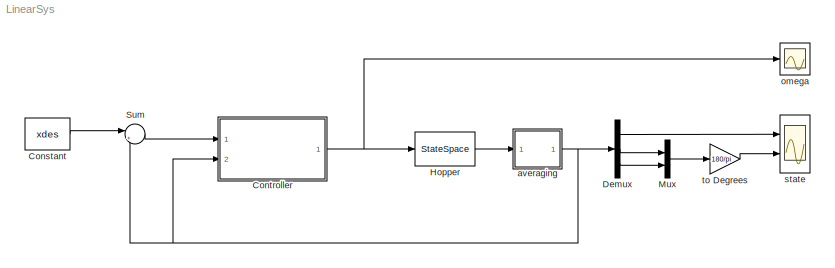
MODEL LinearSys
KIND model
BLOCK [Constant] Constant
  SID = 16
  Value = xdes
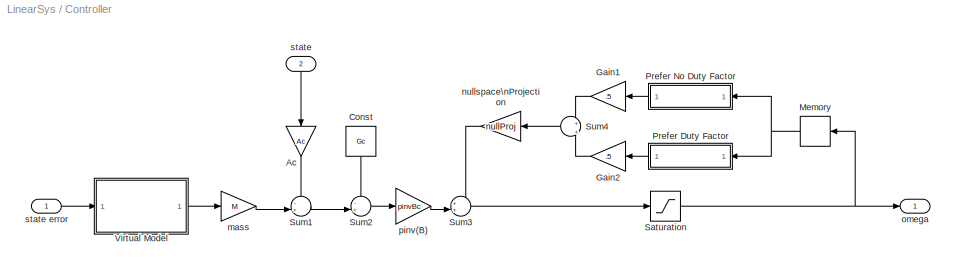
BLOCK [SubSystem] Controller
  FunctionWithSeparateData = off
  MaskHideContents = off
  MinAlgLoopOccurrences = off
  Opaque = off
  Ports = [2, 1]
  PropExecContextOutsideSubsystem = off
  RTWSystemCode = Auto
  RequestExecContextInheritance = off
  SID = 81
BLOCK [Gain] Controller/Ac
  Gain = Ac
  Multiplication = Matrix(K*u)
  OutDataTypeStr = Inherit: Inherit via internal rule
  ParamDataTypeStr = Inherit: Inherit via internal rule
  SID = 31
  SaturateOnIntegerOverflow = off
BLOCK [Constant] Controller/Const
  SID = 34
  Value = Gc
BLOCK [Gain] Controller/Gain1
  Gain = .5
  OutDataTypeStr = Inherit: Inherit via internal rule
  ParamDataTypeStr = Inherit: Inherit via internal rule
  SID = 41
  SaturateOnIntegerOverflow = off
BLOCK [Gain] Controller/Gain2
  Gain = .5
  OutDataTypeStr = Inherit: Inherit via internal rule
  ParamDataTypeStr = Inherit: Inherit via internal rule
  SID = 42
  SaturateOnIntegerOverflow = off
BLOCK [Memory] Controller/Memory
  SID = 43
  X0 = w*ones(8,1)
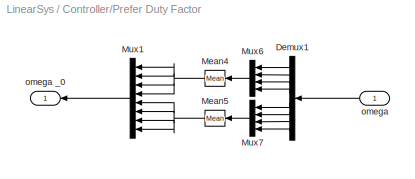
BLOCK [SubSystem] Controller/Prefer Duty Factor
  FunctionWithSeparateData = off
  MaskHideContents = off
  MinAlgLoopOccurrences = off
  Opaque = off
  Ports = [1, 1]
  PropExecContextOutsideSubsystem = off
  RTWSystemCode = Auto
  RequestExecContextInheritance = off
  SID = 44
BLOCK [Demux] Controller/Prefer Duty Factor/Demux1
  DisplayOption = bar
  Outputs = 8
  Ports = [1, 8]
  SID = 46
BLOCK [Reference] Controller/Prefer Duty Factor/Mean4  REF=dspstat3/Mean
  InputProcessing = Columns as channels (frame based)
  LockScale = off
  Ports = [1, 1]
  SID = 47
  SourceBlock = dspstat3/Mean
  SourceType = Mean
  UserData = DataTag0
  UserDataPersistent = on
  accumDataTypeStr = Inherit: Same as input
  accumFracLength = 30
  accumLastDataTypeStr = Inherit: Same as input
  accumMode = Same as input
  accumWordLength = 32
  additionalParams = off
  allowOverrides = on
  dimension = 1
  directionMode = Each column
  outputDataTypeStr = Inherit: Same as accumulator
  outputFracLength = 30
  outputLastDataTypeStr = Inherit: Same as accumulator
  outputMax = []
  outputMin = []
  outputMode = Same as accumulator
  outputWordLength = 32
  overflowMode = off
  reset_popup = None
  roiEnable = off
  roiFlag = off
  roiOutput = Individual statistics for each ROI
  roiPortion = Entire ROI
  roiType = Rectangles
  roundingMode = Floor
  run = off
  treatSBRowAsCol = on
BLOCK [Reference] Controller/Prefer Duty Factor/Mean5  REF=dspstat3/Mean
  InputProcessing = Columns as channels (frame based)
  LockScale = off
  Ports = [1, 1]
  SID = 48
  SourceBlock = dspstat3/Mean
  SourceType = Mean
  UserData = DataTag1
  UserDataPersistent = on
  accumDataTypeStr = Inherit: Same as input
  accumFracLength = 30
  accumLastDataTypeStr = Inherit: Same as input
  accumMode = Same as input
  accumWordLength = 32
  additionalParams = off
  allowOverrides = on
  dimension = 1
  directionMode = Each column
  outputDataTypeStr = Inherit: Same as accumulator
  outputFracLength = 30
  outputLastDataTypeStr = Inherit: Same as accumulator
  outputMax = []
  outputMin = []
  outputMode = Same as accumulator
  outputWordLength = 32
  overflowMode = off
  reset_popup = None
  roiEnable = off
  roiFlag = off
  roiOutput = Individual statistics for each ROI
  roiPortion = Entire ROI
  roiType = Rectangles
  roundingMode = Floor
  run = off
  treatSBRowAsCol = on
BLOCK [Mux] Controller/Prefer Duty Factor/Mux1
  DisplayOption = bar
  Inputs = 8
  Ports = [8, 1]
  SID = 49
BLOCK [Mux] Controller/Prefer Duty Factor/Mux6
  DisplayOption = bar
  Ports = [4, 1]
  SID = 50
BLOCK [Mux] Controller/Prefer Duty Factor/Mux7
  DisplayOption = bar
  Ports = [4, 1]
  SID = 51
BLOCK [Inport] Controller/Prefer Duty Factor/omega
  IconDisplay = Port number
  SID = 45
BLOCK [Outport] Controller/Prefer Duty Factor/omega _0
  IconDisplay = Port number
  SID = 52
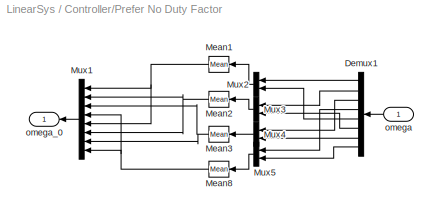
BLOCK [SubSystem] Controller/Prefer No Duty Factor
  FunctionWithSeparateData = off
  MaskHideContents = off
  MinAlgLoopOccurrences = off
  Opaque = off
  Ports = [1, 1]
  PropExecContextOutsideSubsystem = off
  RTWSystemCode = Auto
  RequestExecContextInheritance = off
  SID = 53
BLOCK [Demux] Controller/Prefer No Duty Factor/Demux1
  DisplayOption = bar
  Outputs = 8
  Ports = [1, 8]
  SID = 55
BLOCK [Reference] Controller/Prefer No Duty Factor/Mean1  REF=dspstat3/Mean
  InputProcessing = Columns as channels (frame based)
  LockScale = off
  Ports = [1, 1]
  SID = 56
  SourceBlock = dspstat3/Mean
  SourceType = Mean
  UserData = DataTag2
  UserDataPersistent = on
  accumDataTypeStr = Inherit: Same as input
  accumFracLength = 30
  accumLastDataTypeStr = Inherit: Same as input
  accumMode = Same as input
  accumWordLength = 32
  additionalParams = off
  allowOverrides = on
  dimension = 1
  directionMode = Each column
  outputDataTypeStr = Inherit: Same as accumulator
  outputFracLength = 30
  outputLastDataTypeStr = Inherit: Same as accumulator
  outputMax = []
  outputMin = []
  outputMode = Same as accumulator
  outputWordLength = 32
  overflowMode = off
  reset_popup = None
  roiEnable = off
  roiFlag = off
  roiOutput = Individual statistics for each ROI
  roiPortion = Entire ROI
  roiType = Rectangles
  roundingMode = Floor
  run = off
  treatSBRowAsCol = on
BLOCK [Reference] Controller/Prefer No Duty Factor/Mean2  REF=dspstat3/Mean
  InputProcessing = Columns as channels (frame based)
  LockScale = off
  Ports = [1, 1]
  SID = 57
  SourceBlock = dspstat3/Mean
  SourceType = Mean
  UserData = DataTag3
  UserDataPersistent = on
  accumDataTypeStr = Inherit: Same as input
  accumFracLength = 30
  accumLastDataTypeStr = Inherit: Same as input
  accumMode = Same as input
  accumWordLength = 32
  additionalParams = off
  allowOverrides = on
  dimension = 1
  directionMode = Each column
  outputDataTypeStr = Inherit: Same as accumulator
  outputFracLength = 30
  outputLastDataTypeStr = Inherit: Same as accumulator
  outputMax = []
  outputMin = []
  outputMode = Same as accumulator
  outputWordLength = 32
  overflowMode = off
  reset_popup = None
  roiEnable = off
  roiFlag = off
  roiOutput = Individual statistics for each ROI
  roiPortion = Entire ROI
  roiType = Rectangles
  roundingMode = Floor
  run = off
  treatSBRowAsCol = on
BLOCK [Reference] Controller/Prefer No Duty Factor/Mean3  REF=dspstat3/Mean
  InputProcessing = Columns as channels (frame based)
  LockScale = off
  Ports = [1, 1]
  SID = 58
  SourceBlock = dspstat3/Mean
  SourceType = Mean
  UserData = DataTag4
  UserDataPersistent = on
  accumDataTypeStr = Inherit: Same as input
  accumFracLength = 30
  accumLastDataTypeStr = Inherit: Same as input
  accumMode = Same as input
  accumWordLength = 32
  additionalParams = off
  allowOverrides = on
  dimension = 1
  directionMode = Each column
  outputDataTypeStr = Inherit: Same as accumulator
  outputFracLength = 30
  outputLastDataTypeStr = Inherit: Same as accumulator
  outputMax = []
  outputMin = []
  outputMode = Same as accumulator
  outputWordLength = 32
  overflowMode = off
  reset_popup = None
  roiEnable = off
  roiFlag = off
  roiOutput = Individual statistics for each ROI
  roiPortion = Entire ROI
  roiType = Rectangles
  roundingMode = Floor
  run = off
  treatSBRowAsCol = on
BLOCK [Reference] Controller/Prefer No Duty Factor/Mean8  REF=dspstat3/Mean
  InputProcessing = Columns as channels (frame based)
  LockScale = off
  Ports = [1, 1]
  SID = 59
  SourceBlock = dspstat3/Mean
  SourceType = Mean
  UserData = DataTag5
  UserDataPersistent = on
  accumDataTypeStr = Inherit: Same as input
  accumFracLength = 30
  accumLastDataTypeStr = Inherit: Same as input
  accumMode = Same as input
  accumWordLength = 32
  additionalParams = off
  allowOverrides = on
  dimension = 1
  directionMode = Each column
  outputDataTypeStr = Inherit: Same as accumulator
  outputFracLength = 30
  outputLastDataTypeStr = Inherit: Same as accumulator
  outputMax = []
  outputMin = []
  outputMode = Same as accumulator
  outputWordLength = 32
  overflowMode = off
  reset_popup = None
  roiEnable = off
  roiFlag = off
  roiOutput = Individual statistics for each ROI
  roiPortion = Entire ROI
  roiType = Rectangles
  roundingMode = Floor
  run = off
  treatSBRowAsCol = on
BLOCK [Mux] Controller/Prefer No Duty Factor/Mux1
  DisplayOption = bar
  Inputs = 8
  Ports = [8, 1]
  SID = 60
BLOCK [Mux] Controller/Prefer No Duty Factor/Mux2
  DisplayOption = bar
  Inputs = 2
  Ports = [2, 1]
  SID = 61
BLOCK [Mux] Controller/Prefer No Duty Factor/Mux3
  DisplayOption = bar
  Inputs = 2
  Ports = [2, 1]
  SID = 62
BLOCK [Mux] Controller/Prefer No Duty Factor/Mux4
  DisplayOption = bar
  Inputs = 2
  Ports = [2, 1]
  SID = 63
BLOCK [Mux] Controller/Prefer No Duty Factor/Mux5
  DisplayOption = bar
  Inputs = 2
  Ports = [2, 1]
  SID = 64
BLOCK [Inport] Controller/Prefer No Duty Factor/omega
  IconDisplay = Port number
  SID = 54
BLOCK [Outport] Controller/Prefer No Duty Factor/omega_0
  IconDisplay = Port number
  SID = 65
BLOCK [Saturate] Controller/Saturation
  InputPortMap = u0
  LowerLimit = 10
  Ports = [1, 1]
  SID = 80
  UpperLimit = 100
BLOCK [Sum] Controller/Sum1
  IconShape = round
  InputSameDT = off
  Inputs = -+|
  OutDataTypeStr = Inherit: Inherit via internal rule
  Ports = [2, 1]
  SID = 32
  SaturateOnIntegerOverflow = off
BLOCK [Sum] Controller/Sum2
  IconShape = round
  InputSameDT = off
  Inputs = -+|
  OutDataTypeStr = Inherit: Inherit via internal rule
  Ports = [2, 1]
  SID = 33
  SaturateOnIntegerOverflow = off
BLOCK [Sum] Controller/Sum3
  IconShape = round
  InputSameDT = off
  Inputs = ++|
  OutDataTypeStr = Inherit: Inherit via internal rule
  Ports = [2, 1]
  SID = 68
  SaturateOnIntegerOverflow = off
BLOCK [Sum] Controller/Sum4
  IconShape = round
  InputSameDT = off
  Inputs = +|+
  OutDataTypeStr = Inherit: Inherit via internal rule
  Ports = [2, 1]
  SID = 66
  SaturateOnIntegerOverflow = off
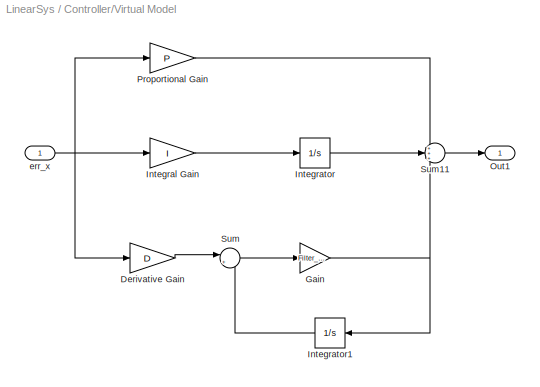
BLOCK [SubSystem] Controller/Virtual Model
  FunctionWithSeparateData = off
  MaskHideContents = off
  MinAlgLoopOccurrences = off
  Opaque = off
  Ports = [1, 1]
  PropExecContextOutsideSubsystem = off
  RTWSystemCode = Auto
  RequestExecContextInheritance = off
  SID = 17
BLOCK [Gain] Controller/Virtual Model/Derivative Gain
  Gain = D
  Multiplication = Matrix(K*u)
  OutDataTypeStr = Inherit: Inherit via internal rule
  ParamDataTypeStr = Inherit: Inherit via internal rule
  SID = 20
  SaturateOnIntegerOverflow = off
BLOCK [Gain] Controller/Virtual Model/Gain
  Gain = Filter_Coef
  OutDataTypeStr = Inherit: Inherit via internal rule
  ParamDataTypeStr = Inherit: Inherit via internal rule
  SID = 21
  SaturateOnIntegerOverflow = off
BLOCK [Gain] Controller/Virtual Model/Integral Gain
  DisableCoverage = on
  Gain = I
  Multiplication = Matrix(K*u)
  OutDataTypeStr = Inherit: Inherit via internal rule
  ParamDataTypeStr = Inherit: Inherit via internal rule
  SID = 22
  SaturateOnIntegerOverflow = off
BLOCK [Integrator] Controller/Virtual Model/Integrator
  Ports = [1, 1]
  SID = 23
BLOCK [Integrator] Controller/Virtual Model/Integrator1
  Ports = [1, 1]
  SID = 24
BLOCK [Outport] Controller/Virtual Model/Out1
  IconDisplay = Port number
  SID = 29
BLOCK [Gain] Controller/Virtual Model/Proportional Gain
  Gain = P
  Multiplication = Matrix(K*u)
  OutDataTypeStr = Inherit: Inherit via internal rule
  ParamDataTypeStr = Inherit: Inherit via internal rule
  SID = 25
  SaturateOnIntegerOverflow = off
BLOCK [Sum] Controller/Virtual Model/Sum
  IconShape = round
  InputSameDT = off
  Inputs = |+-
  OutDataTypeStr = Inherit: Inherit via internal rule
  Ports = [2, 1]
  SID = 26
  SaturateOnIntegerOverflow = off
BLOCK [Sum] Controller/Virtual Model/Sum11
  IconShape = round
  InputSameDT = off
  Inputs = +++
  OutDataTypeStr = Inherit: Inherit via internal rule
  Ports = [3, 1]
  SID = 28
  SaturateOnIntegerOverflow = off
BLOCK [Inport] Controller/Virtual Model/err_x
  IconDisplay = Port number
  SID = 19
BLOCK [Gain] Controller/mass
  Gain = M
  Multiplication = Matrix(K*u)
  OutDataTypeStr = Inherit: Inherit via internal rule
  ParamDataTypeStr = Inherit: Inherit via internal rule
  SID = 30
  SaturateOnIntegerOverflow = off
BLOCK [Gain] Controller/nullspace\nProjection
  Gain = nullProj
  Multiplication = Matrix(K*u)
  OutDataTypeStr = Inherit: Inherit via internal rule
  ParamDataTypeStr = Inherit: Inherit via internal rule
  SID = 69
  SaturateOnIntegerOverflow = off
BLOCK [Outport] Controller/omega
  IconDisplay = Port number
  SID = 84
BLOCK [Gain] Controller/pinv(B)
  Gain = pinvBc
  Multiplication = Matrix(K*u)
  OutDataTypeStr = Inherit: Inherit via internal rule
  ParamDataTypeStr = Inherit: Inherit via internal rule
  SID = 35
  SaturateOnIntegerOverflow = off
BLOCK [Inport] Controller/state
  IconDisplay = Port number
  Port = 2
  SID = 83
BLOCK [Inport] Controller/state error
  IconDisplay = Port number
  SID = 82
BLOCK [Demux] Demux
  DisplayOption = bar
  Outputs = 3
  Ports = [1, 3]
  SID = 85
BLOCK [StateSpace] Hopper
  A = As
  B = Bs
  C = Cs
  D = Ds
  SID = 1
  X0 = x0
BLOCK [Mux] Mux
  DisplayOption = bar
  Inputs = 2
  Ports = [2, 1]
  SID = 86
BLOCK [Sum] Sum
  IconShape = round
  InputSameDT = off
  Inputs = |+-
  OutDataTypeStr = Inherit: Inherit via internal rule
  Ports = [2, 1]
  SID = 15
  SaturateOnIntegerOverflow = off
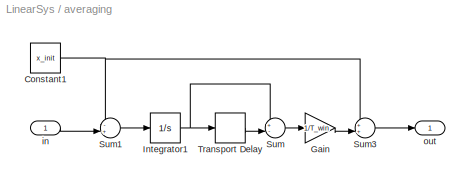
BLOCK [SubSystem] averaging
  FunctionWithSeparateData = off
  MaskHideContents = off
  MinAlgLoopOccurrences = off
  Opaque = off
  Ports = [1, 1]
  PropExecContextOutsideSubsystem = off
  RTWSystemCode = Auto
  RequestExecContextInheritance = off
  SID = 70
BLOCK [Constant] averaging/Constant1
  SID = 72
  Value = x_init
BLOCK [Gain] averaging/Gain
  Gain = 1/T_win
  OutDataTypeStr = Inherit: Inherit via internal rule
  ParamDataTypeStr = Inherit: Inherit via internal rule
  SID = 73
  SaturateOnIntegerOverflow = off
BLOCK [Integrator] averaging/Integrator1
  Ports = [1, 1]
  SID = 74
BLOCK [Sum] averaging/Sum
  IconShape = round
  InputSameDT = off
  Inputs = +-|
  OutDataTypeStr = Inherit: Inherit via internal rule
  Ports = [2, 1]
  SID = 75
  SaturateOnIntegerOverflow = off
BLOCK [Sum] averaging/Sum1
  IconShape = round
  InputSameDT = off
  Inputs = -+|
  OutDataTypeStr = Inherit: Inherit via internal rule
  Ports = [2, 1]
  SID = 76
  SaturateOnIntegerOverflow = off
BLOCK [Sum] averaging/Sum3
  IconShape = round
  InputSameDT = off
  Inputs = ++|
  OutDataTypeStr = Inherit: Inherit via internal rule
  Ports = [2, 1]
  SID = 77
  SaturateOnIntegerOverflow = off
BLOCK [TransportDelay] averaging/Transport Delay
  DelayTime = T_win
  Ports = [1, 1]
  SID = 78
BLOCK [Inport] averaging/in
  IconDisplay = Port number
  SID = 71
BLOCK [Outport] averaging/out
  IconDisplay = Port number
  SID = 79
BLOCK [Scope] omega
  DataFormat = StructureWithTime
  Floating = off
  LimitDataPoints = off
  NumInputPorts = 1
  Ports = [1]
  SID = 40
  SampleTime = 0
  SaveName = ScopeData1
  ShowLegends = off
  TimeRange = 20
  YMax = 59.7
  YMin = 59.3
  ZoomMode = yonly
BLOCK [Scope] state
  DataFormat = StructureWithTime
  Floating = off
  LimitDataPoints = off
  NumInputPorts = 2
  Ports = [2]
  SID = 3
  SampleTime = 0
  ShowLegends = off
  TimeRange = 20
  YMax = 0.0225~25
  YMin = 0.0175~-15
  ZoomMode = xonly
BLOCK [Gain] to Degrees
  Gain = 180/pi
  OutDataTypeStr = Inherit: Inherit via internal rule
  ParamDataTypeStr = Inherit: Inherit via internal rule
  SID = 88
  SaturateOnIntegerOverflow = off
LINE Constant:1 -> Sum:1
LINE Controller/Ac:1 -> Controller/Sum1:1
LINE Controller/Const:1 -> Controller/Sum2:1
LINE Controller/Gain1:1 -> Controller/Sum4:1
LINE Controller/Gain2:1 -> Controller/Sum4:2
NET Controller/Memory:1 -> Controller/Prefer Duty Factor:1, Controller/Prefer No Duty Factor:1
LINE Controller/Prefer Duty Factor/Demux1:1 -> Controller/Prefer Duty Factor/Mux6:1
LINE Controller/Prefer Duty Factor/Demux1:2 -> Controller/Prefer Duty Factor/Mux6:2
LINE Controller/Prefer Duty Factor/Demux1:3 -> Controller/Prefer Duty Factor/Mux6:3
LINE Controller/Prefer Duty Factor/Demux1:4 -> Controller/Prefer Duty Factor/Mux6:4
LINE Controller/Prefer Duty Factor/Demux1:5 -> Controller/Prefer Duty Factor/Mux7:1
LINE Controller/Prefer Duty Factor/Demux1:6 -> Controller/Prefer Duty Factor/Mux7:2
LINE Controller/Prefer Duty Factor/Demux1:7 -> Controller/Prefer Duty Factor/Mux7:3
LINE Controller/Prefer Duty Factor/Demux1:8 -> Controller/Prefer Duty Factor/Mux7:4
NET Controller/Prefer Duty Factor/Mean4:1 -> Controller/Prefer Duty Factor/Mux1:1, Controller/Prefer Duty Factor/Mux1:2, Controller/Prefer Duty Factor/Mux1:3, Controller/Prefer Duty Factor/Mux1:4
NET Controller/Prefer Duty Factor/Mean5:1 -> Controller/Prefer Duty Factor/Mux1:5, Controller/Prefer Duty Factor/Mux1:6, Controller/Prefer Duty Factor/Mux1:7, Controller/Prefer Duty Factor/Mux1:8
LINE Controller/Prefer Duty Factor/Mux1:1 -> Controller/Prefer Duty Factor/omega _0:1
LINE Controller/Prefer Duty Factor/Mux6:1 -> Controller/Prefer Duty Factor/Mean4:1
LINE Controller/Prefer Duty Factor/Mux7:1 -> Controller/Prefer Duty Factor/Mean5:1
LINE Controller/Prefer Duty Factor/omega:1 -> Controller/Prefer Duty Factor/Demux1:1
LINE Controller/Prefer Duty Factor:1 -> Controller/Gain2:1
LINE Controller/Prefer No Duty Factor/Demux1:1 -> Controller/Prefer No Duty Factor/Mux2:1
LINE Controller/Prefer No Duty Factor/Demux1:2 -> Controller/Prefer No Duty Factor/Mux3:1
LINE Controller/Prefer No Duty Factor/Demux1:3 -> Controller/Prefer No Duty Factor/Mux4:1
LINE Controller/Prefer No Duty Factor/Demux1:4 -> Controller/Prefer No Duty Factor/Mux5:1
LINE Controller/Prefer No Duty Factor/Demux1:5 -> Controller/Prefer No Duty Factor/Mux2:2
LINE Controller/Prefer No Duty Factor/Demux1:6 -> Controller/Prefer No Duty Factor/Mux3:2
LINE Controller/Prefer No Duty Factor/Demux1:7 -> Controller/Prefer No Duty Factor/Mux4:2
LINE Controller/Prefer No Duty Factor/Demux1:8 -> Controller/Prefer No Duty Factor/Mux5:2
NET Controller/Prefer No Duty Factor/Mean1:1 -> Controller/Prefer No Duty Factor/Mux1:1, Controller/Prefer No Duty Factor/Mux1:5
NET Controller/Prefer No Duty Factor/Mean2:1 -> Controller/Prefer No Duty Factor/Mux1:2, Controller/Prefer No Duty Factor/Mux1:6
NET Controller/Prefer No Duty Factor/Mean3:1 -> Controller/Prefer No Duty Factor/Mux1:3, Controller/Prefer No Duty Factor/Mux1:7
NET Controller/Prefer No Duty Factor/Mean8:1 -> Controller/Prefer No Duty Factor/Mux1:4, Controller/Prefer No Duty Factor/Mux1:8
LINE Controller/Prefer No Duty Factor/Mux1:1 -> Controller/Prefer No Duty Factor/omega_0:1
LINE Controller/Prefer No Duty Factor/Mux2:1 -> Controller/Prefer No Duty Factor/Mean1:1
LINE Controller/Prefer No Duty Factor/Mux3:1 -> Controller/Prefer No Duty Factor/Mean2:1
LINE Controller/Prefer No Duty Factor/Mux4:1 -> Controller/Prefer No Duty Factor/Mean3:1
LINE Controller/Prefer No Duty Factor/Mux5:1 -> Controller/Prefer No Duty Factor/Mean8:1
LINE Controller/Prefer No Duty Factor/omega:1 -> Controller/Prefer No Duty Factor/Demux1:1
LINE Controller/Prefer No Duty Factor:1 -> Controller/Gain1:1
NET Controller/Saturation:1 -> Controller/Memory:1, Controller/omega:1
LINE Controller/Sum1:1 -> Controller/Sum2:2
LINE Controller/Sum2:1 -> Controller/pinv(B):1
LINE Controller/Sum3:1 -> Controller/Saturation:1
LINE Controller/Sum4:1 -> Controller/nullspace\nProjection:1
LINE Controller/Virtual Model/Derivative Gain:1 -> Controller/Virtual Model/Sum:1
NET Controller/Virtual Model/Gain:1 -> Controller/Virtual Model/Integrator1:1, Controller/Virtual Model/Sum11:3
LINE Controller/Virtual Model/Integral Gain:1 -> Controller/Virtual Model/Integrator:1
LINE Controller/Virtual Model/Integrator1:1 -> Controller/Virtual Model/Sum:2
LINE Controller/Virtual Model/Integrator:1 -> Controller/Virtual Model/Sum11:2
LINE Controller/Virtual Model/Proportional Gain:1 -> Controller/Virtual Model/Sum11:1
LINE Controller/Virtual Model/Sum11:1 -> Controller/Virtual Model/Out1:1
LINE Controller/Virtual Model/Sum:1 -> Controller/Virtual Model/Gain:1
NET Controller/Virtual Model/err_x:1 -> Controller/Virtual Model/Derivative Gain:1, Controller/Virtual Model/Integral Gain:1, Controller/Virtual Model/Proportional Gain:1
LINE Controller/Virtual Model:1 -> Controller/mass:1
LINE Controller/mass:1 -> Controller/Sum1:2
LINE Controller/nullspace\nProjection:1 -> Controller/Sum3:1
LINE Controller/pinv(B):1 -> Controller/Sum3:2
LINE Controller/state error:1 -> Controller/Virtual Model:1
LINE Controller/state:1 -> Controller/Ac:1
NET Controller:1 -> Hopper:1, omega:1
LINE Demux:1 -> state:1
LINE Demux:2 -> Mux:1
LINE Demux:3 -> Mux:2
LINE Hopper:1 -> averaging:1
LINE Mux:1 -> to Degrees:1
LINE Sum:1 -> Controller:1
NET averaging/Constant1:1 -> averaging/Sum1:1, averaging/Sum3:1
LINE averaging/Gain:1 -> averaging/Sum3:2
NET averaging/Integrator1:1 -> averaging/Sum:1, averaging/Transport Delay:1
LINE averaging/Sum1:1 -> averaging/Integrator1:1
LINE averaging/Sum3:1 -> averaging/out:1
LINE averaging/Sum:1 -> averaging/Gain:1
LINE averaging/Transport Delay:1 -> averaging/Sum:2
LINE averaging/in:1 -> averaging/Sum1:2
NET averaging:1 -> Controller:2, Demux:1, Sum:2
LINE to Degrees:1 -> state:2
note: NET lines group one-source signal fan-out (src -> all destinations, sorted); 1:1 wires keep LINE
